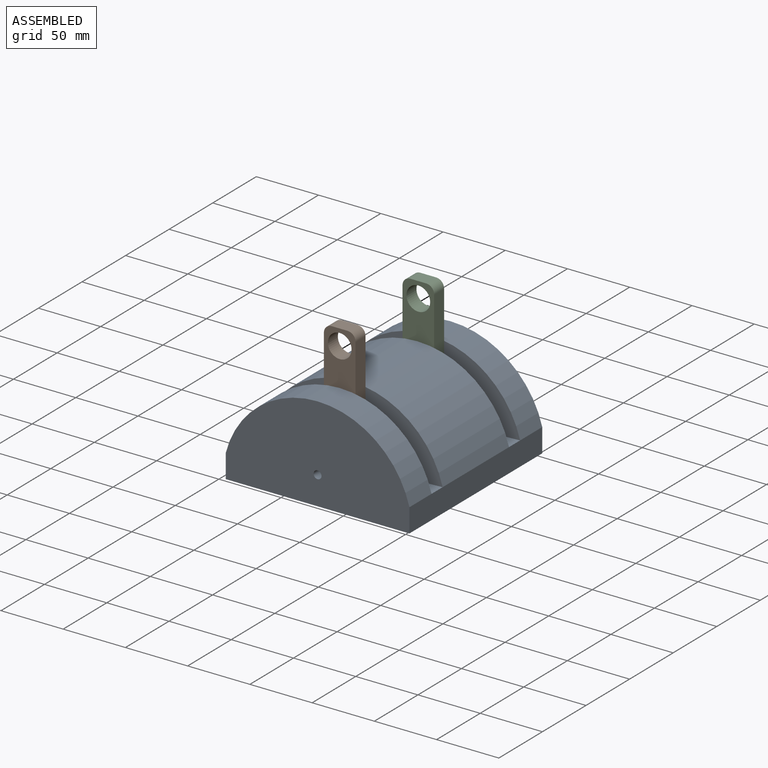
[diagram: assembled view]
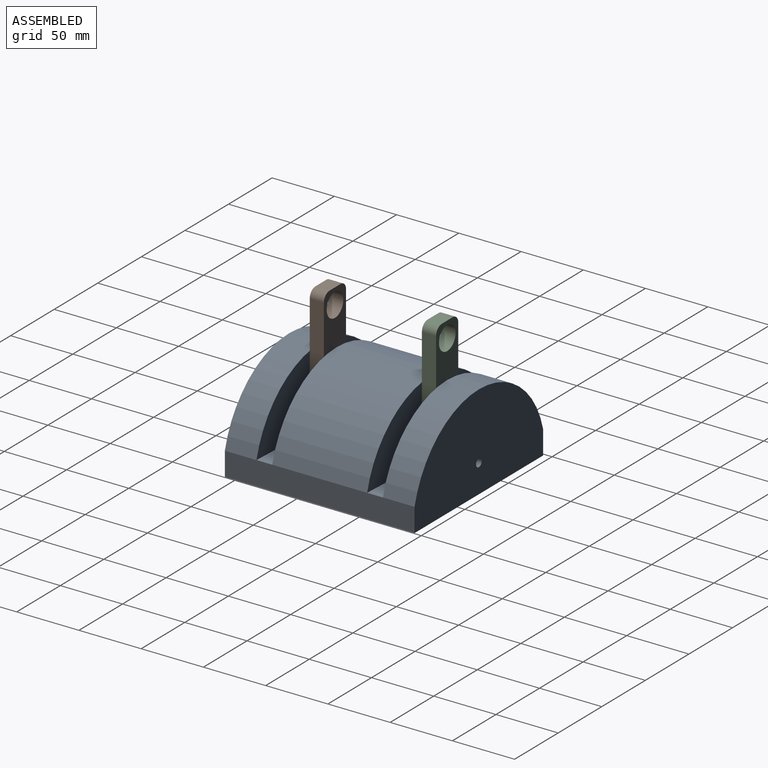
[diagram: assembled view, second angle]
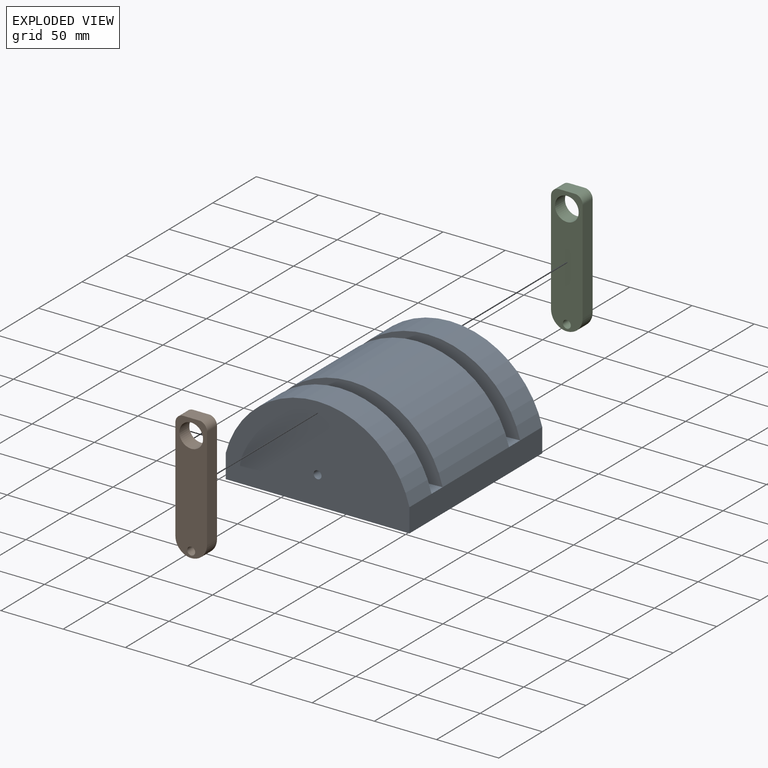
[diagram: exploded view]
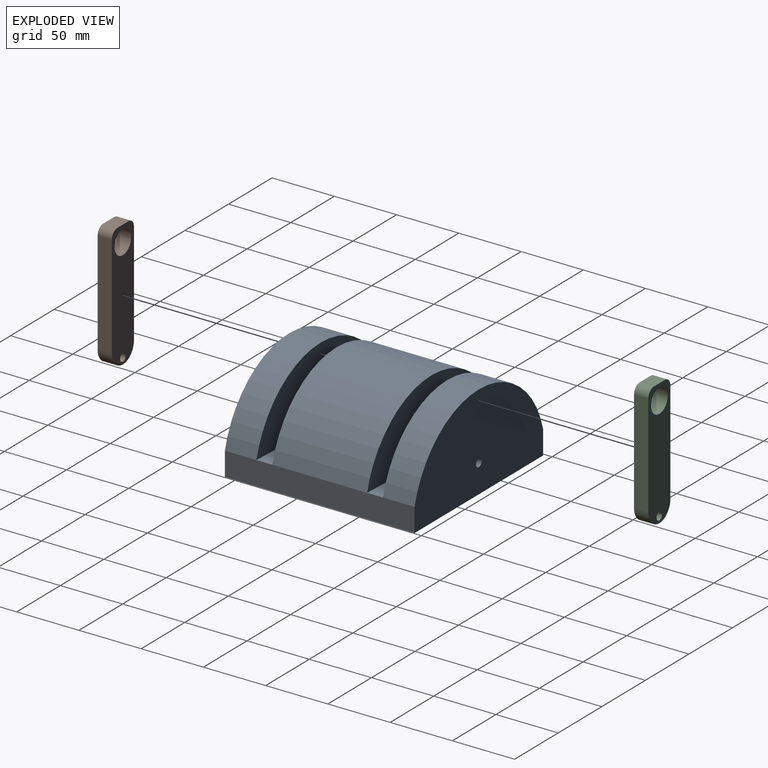
[diagram: exploded view, second angle]
ASSEMBLY  parts=3 mates=2
PART A: 19 faces, bbox 147.6x152.4x76.2 mm
  f0: cylinder r=76.2mm len=147.56mm, axis (0,1,0), area 15307.1mm2, adj f2,f4,f11,f15
  f1: cylinder r=76.2mm len=147.56mm, axis (0,1,0), area 5102.4mm2, adj f2,f4,f7,f10
  f2: plane 152.4x19.05mm, normal (1,0,0), area 2903.2mm2, adj f0,f1,f3,f5,f6,f7,f8,f12
  f3: cylinder r=76.2mm len=147.56mm, axis (0,1,0), area 5102.4mm2, adj f2,f4,f6,f14
  f4: plane 152.4x19.05mm, normal (-1,0,0), area 2903.2mm2, adj f0,f1,f3,f5,f6,f7,f9,f13
  f5: plane 152.4x147.56mm, normal (0,0,-1), area 22488.2mm2, adj f2,f4,f6,f7
  f6: plane 147.56x76.2mm, normal (0,-1,0), area 9027.4mm2, adj f2,f3,f4,f5,f17
  f7: plane 147.56x76.2mm, normal (0,1,0), area 9027.4mm2, adj f1,f2,f4,f5,f18
  f8: plane 73.78x12.7mm, normal (-0.03,0,1), area 937.6mm2, adj f2,f9,f10,f11
  f9: plane 73.78x12.7mm, normal (0.03,0,1), area 937.6mm2, adj f4,f8,f10,f11
  f10: plane 147.56x59.69mm, normal (0,-1,0), area 6403.8mm2, adj f1,f8,f9,f18
  f11: plane 147.56x59.69mm, normal (0,1,0), area 6403.8mm2, adj f0,f8,f9,f16
  f12: plane 73.78x12.7mm, normal (-0.03,0,1), area 937.6mm2, adj f2,f13,f14,f15
  f13: plane 73.78x12.7mm, normal (0.03,0,1), area 937.6mm2, adj f4,f12,f14,f15
  f14: plane 147.56x59.69mm, normal (0,1,0), area 6403.8mm2, adj f3,f12,f13,f17
  f15: plane 147.56x59.69mm, normal (0,-1,0), area 6403.8mm2, adj f0,f12,f13,f16
  f16: cylinder r=3.17mm len=76.2mm, axis (0,-1,0), area 1520.1mm2, adj f11,f15
  f17: cylinder r=3.17mm len=25.4mm, axis (0,-1,0), area 506.7mm2, adj f6,f14
  f18: cylinder r=3.17mm len=25.4mm, axis (0,-1,0), area 506.7mm2, adj f7,f10
PART B: 10 faces, bbox 101.6x25.4x11.4 mm
  f0: cylinder r=12.7mm len=25.4mm, axis (0,0,-1), area 456mm2, adj f1,f7,f8,f9
  f1: plane 82.55x11.43mm, normal (0,-1,0), area 943.5mm2, adj f0,f2,f8,f9
  f2: cylinder r=6.35mm len=11.43mm, axis (0,0,-1), area 114mm2, adj f1,f3,f8,f9
  f3: plane 12.7x11.43mm, normal (1,0,0), area 145.2mm2, adj f2,f4,f8,f9
  f4: cylinder r=6.35mm len=11.43mm, axis (0,0,-1), area 114mm2, adj f3,f7,f8,f9
  f5: cylinder r=3.17mm len=11.43mm, axis (0,0,-1), area 228mm2, adj f8,f9
  f6: cylinder r=9.53mm len=19.05mm, axis (0,0,-1), area 684.1mm2, adj f8,f9
  f7: plane 82.55x11.43mm, normal (0,1,0), area 943.5mm2, adj f0,f4,f8,f9
  f8: plane 101.6x25.4mm, normal (0,0,1), area 2177.4mm2, adj f0,f1,f2,f3,f4,f5,f6,f7
  f9: plane 101.6x25.4mm, normal (0,0,-1), area 2177.4mm2, adj f0,f1,f2,f3,f4,f5,f6,f7
PART C: same geometry as B
PLACE A t=(-68,-27.58,-2.16)mm
PLACE B rot(axis=(0.58,-0.58,0.58),120deg) t=(-68,-66.95,66.42)mm
PLACE C rot(axis=(0.58,-0.58,0.58),120deg) t=(-68,23.22,66.42)mm
MATE revolute C.f5 <-> A.f16  axis (0,1,0) through (-68,23.22,20.7)mm
MATE revolute B.f5 <-> A.f16  axis (0,-1,0) through (-68,-78.38,20.7)mm
